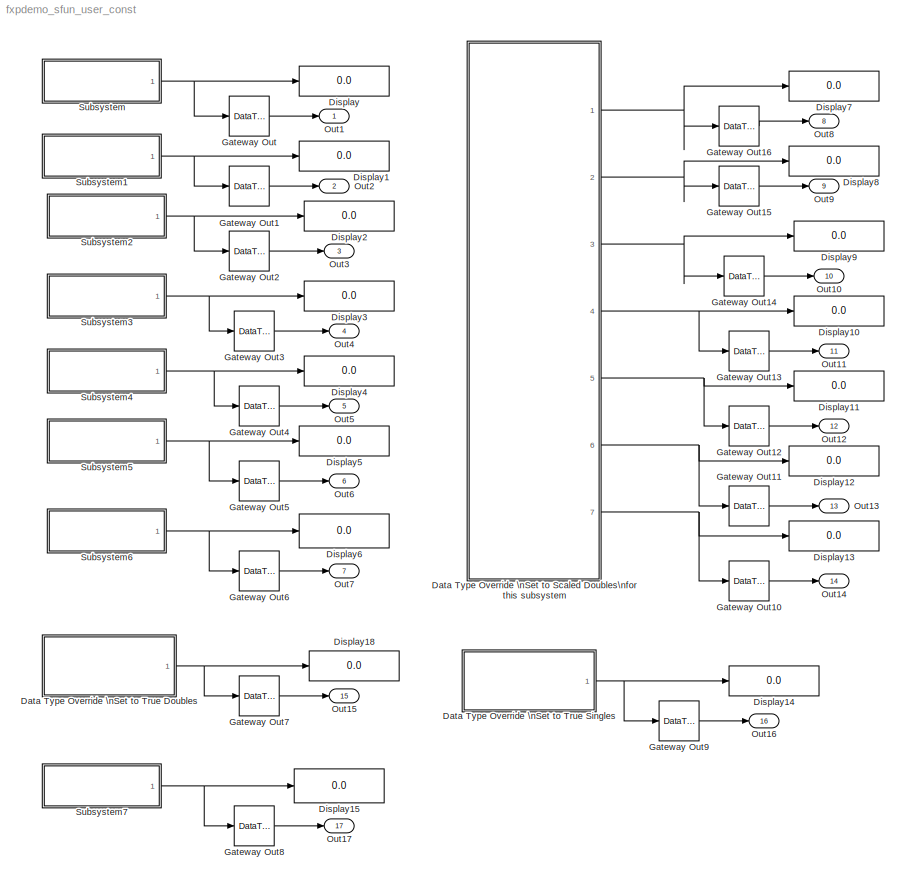
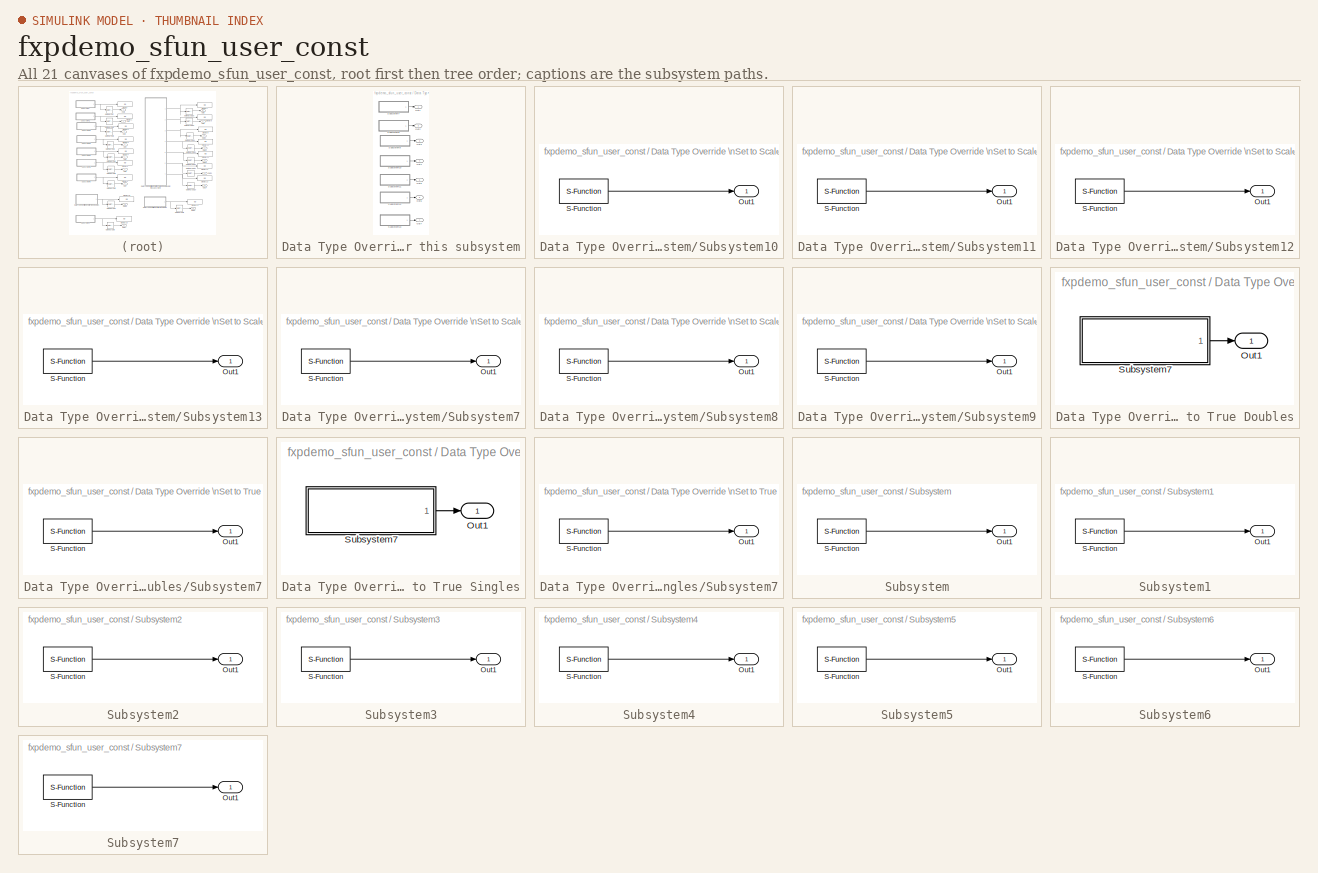
[diagram: thumbnail index - all 21 canvases of the model, root first then tree order]
MODEL fxpdemo_sfun_user_const
KIND model
CONFIG AbsTol = auto
CONFIG FixedStep = 1
CONFIG MaxStep = auto
CONFIG MinStep = auto
CONFIG RelTol = 1e-3
CONFIG Solver = FixedStepDiscrete
CONFIG SolverMode = Auto
CONFIG StartTime = 0.0
CONFIG StopTime = 1
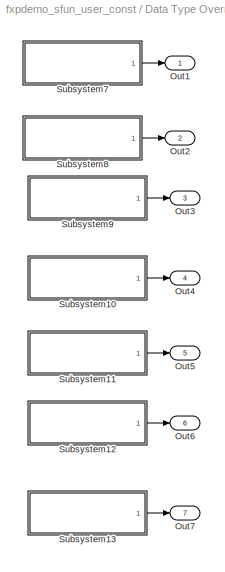
BLOCK [SubSystem] Data Type Override \nSet to Scaled Doubles\nfor this subsystem
  DataTypeOverride = ScaledDoubles
  Ports = [0, 7]
  TreatAsAtomicUnit = off
BLOCK [Outport] Data Type Override \nSet to Scaled Doubles\nfor this subsystem/Out1
BLOCK [Outport] Data Type Override \nSet to Scaled Doubles\nfor this subsystem/Out2
  Port = 2
BLOCK [Outport] Data Type Override \nSet to Scaled Doubles\nfor this subsystem/Out3
  Port = 3
BLOCK [Outport] Data Type Override \nSet to Scaled Doubles\nfor this subsystem/Out4
  Port = 4
BLOCK [Outport] Data Type Override \nSet to Scaled Doubles\nfor this subsystem/Out5
  Port = 5
BLOCK [Outport] Data Type Override \nSet to Scaled Doubles\nfor this subsystem/Out6
  Port = 6
BLOCK [Outport] Data Type Override \nSet to Scaled Doubles\nfor this subsystem/Out7
  Port = 7
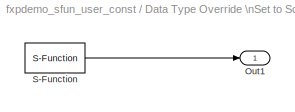
BLOCK [SubSystem] Data Type Override \nSet to Scaled Doubles\nfor this subsystem/Subsystem10
  MaskCallbackString = |||
  MaskDisplay = disp(sprintf('User SFunction\\nFixed Point\\nConstant'))
  MaskEnableString = on,on,on,on
  MaskIconFrame = on
  MaskIconOpaque = on
  MaskIconRotate = none
  MaskIconUnits = autoscale
  MaskPromptString = Stored Integer Value|Signed integer (otherwise unsigned integer)|Total Number of Bits|Number of Bits to Right of Binary Point
  MaskStyleString = edit,checkbox,edit,edit
  MaskToolTipString = on,on,on,on
  MaskTunableValueString = on,on,on,on
  MaskValueString = 33|off|7|2
  MaskVarAliasString = ,,,
  MaskVariables = storedInt=@1;isSigned=@2;numBits=@3;numFracBits=@4;
  MaskVisibilityString = on,on,on,on
  Ports = [0, 1]
  TreatAsAtomicUnit = off
BLOCK [Outport] Data Type Override \nSet to Scaled Doubles\nfor this subsystem/Subsystem10/Out1
BLOCK [S-Function] Data Type Override \nSet to Scaled Doubles\nfor this subsystem/Subsystem10/S-Function
  FunctionName = sfun_user_fxp_const
  Parameters = storedInt, isSigned, numBits, numFracBits
  Ports = [0, 1]
BLOCK [SubSystem] Data Type Override \nSet to Scaled Doubles\nfor this subsystem/Subsystem11
  MaskCallbackString = |||
  MaskDisplay = disp(sprintf('User SFunction\\nFixed Point\\nConstant'))
  MaskEnableString = on,on,on,on
  MaskIconFrame = on
  MaskIconOpaque = on
  MaskIconRotate = none
  MaskIconUnits = autoscale
  MaskPromptString = Stored Integer Value|Signed integer (otherwise unsigned integer)|Total Number of Bits|Number of Bits to Right of Binary Point
  MaskStyleString = edit,checkbox,edit,edit
  MaskToolTipString = on,on,on,on
  MaskTunableValueString = on,on,on,on
  MaskValueString = 33|off|12|2
  MaskVarAliasString = ,,,
  MaskVariables = storedInt=@1;isSigned=@2;numBits=@3;numFracBits=@4;
  MaskVisibilityString = on,on,on,on
  Ports = [0, 1]
  TreatAsAtomicUnit = off
BLOCK [Outport] Data Type Override \nSet to Scaled Doubles\nfor this subsystem/Subsystem11/Out1
BLOCK [S-Function] Data Type Override \nSet to Scaled Doubles\nfor this subsystem/Subsystem11/S-Function
  FunctionName = sfun_user_fxp_const
  Parameters = storedInt, isSigned, numBits, numFracBits
  Ports = [0, 1]
BLOCK [SubSystem] Data Type Override \nSet to Scaled Doubles\nfor this subsystem/Subsystem12
  MaskCallbackString = |||
  MaskDisplay = disp(sprintf('User SFunction\\nFixed Point\\nConstant'))
  MaskEnableString = on,on,on,on
  MaskIconFrame = on
  MaskIconOpaque = on
  MaskIconRotate = none
  MaskIconUnits = autoscale
  MaskPromptString = Stored Integer Value|Signed integer (otherwise unsigned integer)|Total Number of Bits|Number of Bits to Right of Binary Point
  MaskStyleString = edit,checkbox,edit,edit
  MaskToolTipString = on,on,on,on
  MaskTunableValueString = on,on,on,on
  MaskValueString = 33|off|17|2
  MaskVarAliasString = ,,,
  MaskVariables = storedInt=@1;isSigned=@2;numBits=@3;numFracBits=@4;
  MaskVisibilityString = on,on,on,on
  Ports = [0, 1]
  TreatAsAtomicUnit = off
BLOCK [Outport] Data Type Override \nSet to Scaled Doubles\nfor this subsystem/Subsystem12/Out1
BLOCK [S-Function] Data Type Override \nSet to Scaled Doubles\nfor this subsystem/Subsystem12/S-Function
  FunctionName = sfun_user_fxp_const
  Parameters = storedInt, isSigned, numBits, numFracBits
  Ports = [0, 1]
BLOCK [SubSystem] Data Type Override \nSet to Scaled Doubles\nfor this subsystem/Subsystem13
  MaskCallbackString = |||
  MaskDisplay = disp(sprintf('User SFunction\\nFixed Point\\nConstant'))
  MaskEnableString = on,on,on,on
  MaskIconFrame = on
  MaskIconOpaque = on
  MaskIconRotate = none
  MaskIconUnits = autoscale
  MaskPromptString = Stored Integer Value|Signed integer (otherwise unsigned integer)|Total Number of Bits|Number of Bits to Right of Binary Point
  MaskStyleString = edit,checkbox,edit,edit
  MaskToolTipString = on,on,on,on
  MaskTunableValueString = on,on,on,on
  MaskValueString = 33|off|77|2
  MaskVarAliasString = ,,,
  MaskVariables = storedInt=@1;isSigned=@2;numBits=@3;numFracBits=@4;
  MaskVisibilityString = on,on,on,on
  Ports = [0, 1]
  TreatAsAtomicUnit = off
BLOCK [Outport] Data Type Override \nSet to Scaled Doubles\nfor this subsystem/Subsystem13/Out1
BLOCK [S-Function] Data Type Override \nSet to Scaled Doubles\nfor this subsystem/Subsystem13/S-Function
  FunctionName = sfun_user_fxp_const
  Parameters = storedInt, isSigned, numBits, numFracBits
  Ports = [0, 1]
BLOCK [SubSystem] Data Type Override \nSet to Scaled Doubles\nfor this subsystem/Subsystem7
  MaskCallbackString = |||
  MaskDisplay = disp(sprintf('User SFunction\\nFixed Point\\nConstant'))
  MaskEnableString = on,on,on,on
  MaskIconFrame = on
  MaskIconOpaque = on
  MaskIconRotate = none
  MaskIconUnits = autoscale
  MaskPromptString = Stored Integer Value|Signed integer (otherwise unsigned integer)|Total Number of Bits|Number of Bits to Right of Binary Point
  MaskStyleString = edit,checkbox,edit,edit
  MaskToolTipString = on,on,on,on
  MaskTunableValueString = on,on,on,on
  MaskValueString = 33|on|7|2
  MaskVarAliasString = ,,,
  MaskVariables = storedInt=@1;isSigned=@2;numBits=@3;numFracBits=@4;
  MaskVisibilityString = on,on,on,on
  Ports = [0, 1]
  TreatAsAtomicUnit = off
BLOCK [Outport] Data Type Override \nSet to Scaled Doubles\nfor this subsystem/Subsystem7/Out1
BLOCK [S-Function] Data Type Override \nSet to Scaled Doubles\nfor this subsystem/Subsystem7/S-Function
  FunctionName = sfun_user_fxp_const
  Parameters = storedInt, isSigned, numBits, numFracBits
  Ports = [0, 1]
BLOCK [SubSystem] Data Type Override \nSet to Scaled Doubles\nfor this subsystem/Subsystem8
  MaskCallbackString = |||
  MaskDisplay = disp(sprintf('User SFunction\\nFixed Point\\nConstant'))
  MaskEnableString = on,on,on,on
  MaskIconFrame = on
  MaskIconOpaque = on
  MaskIconRotate = none
  MaskIconUnits = autoscale
  MaskPromptString = Stored Integer Value|Signed integer (otherwise unsigned integer)|Total Number of Bits|Number of Bits to Right of Binary Point
  MaskStyleString = edit,checkbox,edit,edit
  MaskToolTipString = on,on,on,on
  MaskTunableValueString = on,on,on,on
  MaskValueString = 33|on|12|2
  MaskVarAliasString = ,,,
  MaskVariables = storedInt=@1;isSigned=@2;numBits=@3;numFracBits=@4;
  MaskVisibilityString = on,on,on,on
  Ports = [0, 1]
  TreatAsAtomicUnit = off
BLOCK [Outport] Data Type Override \nSet to Scaled Doubles\nfor this subsystem/Subsystem8/Out1
BLOCK [S-Function] Data Type Override \nSet to Scaled Doubles\nfor this subsystem/Subsystem8/S-Function
  FunctionName = sfun_user_fxp_const
  Parameters = storedInt, isSigned, numBits, numFracBits
  Ports = [0, 1]
BLOCK [SubSystem] Data Type Override \nSet to Scaled Doubles\nfor this subsystem/Subsystem9
  MaskCallbackString = |||
  MaskDisplay = disp(sprintf('User SFunction\\nFixed Point\\nConstant'))
  MaskEnableString = on,on,on,on
  MaskIconFrame = on
  MaskIconOpaque = on
  MaskIconRotate = none
  MaskIconUnits = autoscale
  MaskPromptString = Stored Integer Value|Signed integer (otherwise unsigned integer)|Total Number of Bits|Number of Bits to Right of Binary Point
  MaskStyleString = edit,checkbox,edit,edit
  MaskToolTipString = on,on,on,on
  MaskTunableValueString = on,on,on,on
  MaskValueString = 33|on|17|2
  MaskVarAliasString = ,,,
  MaskVariables = storedInt=@1;isSigned=@2;numBits=@3;numFracBits=@4;
  MaskVisibilityString = on,on,on,on
  Ports = [0, 1]
  TreatAsAtomicUnit = off
BLOCK [Outport] Data Type Override \nSet to Scaled Doubles\nfor this subsystem/Subsystem9/Out1
BLOCK [S-Function] Data Type Override \nSet to Scaled Doubles\nfor this subsystem/Subsystem9/S-Function
  FunctionName = sfun_user_fxp_const
  Parameters = storedInt, isSigned, numBits, numFracBits
  Ports = [0, 1]
BLOCK [SubSystem] Data Type Override \nSet to True Doubles
  DataTypeOverride = TrueDoubles
  Ports = [0, 1]
  TreatAsAtomicUnit = off
BLOCK [Outport] Data Type Override \nSet to True Doubles/Out1
BLOCK [SubSystem] Data Type Override \nSet to True Doubles/Subsystem7
  MaskCallbackString = |||
  MaskDisplay = disp(sprintf('User SFunction\\nFixed Point\\nConstant'))
  MaskEnableString = on,on,on,on
  MaskIconFrame = on
  MaskIconOpaque = on
  MaskIconRotate = none
  MaskIconUnits = autoscale
  MaskPromptString = Stored Integer Value|Signed integer (otherwise unsigned integer)|Total Number of Bits|Number of Bits to Right of Binary Point
  MaskStyleString = edit,checkbox,edit,edit
  MaskToolTipString = on,on,on,on
  MaskTunableValueString = on,on,on,on
  MaskValueString = 33|on|7|2
  MaskVarAliasString = ,,,
  MaskVariables = storedInt=@1;isSigned=@2;numBits=@3;numFracBits=@4;
  MaskVisibilityString = on,on,on,on
  Ports = [0, 1]
  TreatAsAtomicUnit = off
BLOCK [Outport] Data Type Override \nSet to True Doubles/Subsystem7/Out1
BLOCK [S-Function] Data Type Override \nSet to True Doubles/Subsystem7/S-Function
  FunctionName = sfun_user_fxp_const
  Parameters = storedInt, isSigned, numBits, numFracBits
  Ports = [0, 1]
BLOCK [SubSystem] Data Type Override \nSet to True Singles
  DataTypeOverride = TrueSingles
  Ports = [0, 1]
  TreatAsAtomicUnit = off
BLOCK [Outport] Data Type Override \nSet to True Singles/Out1
BLOCK [SubSystem] Data Type Override \nSet to True Singles/Subsystem7
  MaskCallbackString = |||
  MaskDisplay = disp(sprintf('User SFunction\\nFixed Point\\nConstant'))
  MaskEnableString = on,on,on,on
  MaskIconFrame = on
  MaskIconOpaque = on
  MaskIconRotate = none
  MaskIconUnits = autoscale
  MaskPromptString = Stored Integer Value|Signed integer (otherwise unsigned integer)|Total Number of Bits|Number of Bits to Right of Binary Point
  MaskStyleString = edit,checkbox,edit,edit
  MaskToolTipString = on,on,on,on
  MaskTunableValueString = on,on,on,on
  MaskValueString = 33|on|7|2
  MaskVarAliasString = ,,,
  MaskVariables = storedInt=@1;isSigned=@2;numBits=@3;numFracBits=@4;
  MaskVisibilityString = on,on,on,on
  Ports = [0, 1]
  TreatAsAtomicUnit = off
BLOCK [Outport] Data Type Override \nSet to True Singles/Subsystem7/Out1
BLOCK [S-Function] Data Type Override \nSet to True Singles/Subsystem7/S-Function
  FunctionName = sfun_user_fxp_const
  Parameters = storedInt, isSigned, numBits, numFracBits
  Ports = [0, 1]
BLOCK [Display] Display
  Decimation = 1
  Ports = [1]
BLOCK [Display] Display1
  Decimation = 1
  Ports = [1]
BLOCK [Display] Display10
  Decimation = 1
  Ports = [1]
BLOCK [Display] Display11
  Decimation = 1
  Ports = [1]
BLOCK [Display] Display12
  Decimation = 1
  Ports = [1]
BLOCK [Display] Display13
  Decimation = 1
  Ports = [1]
BLOCK [Display] Display14
  Decimation = 1
  Ports = [1]
BLOCK [Display] Display15
  Decimation = 1
  Ports = [1]
BLOCK [Display] Display18
  Decimation = 1
  Ports = [1]
BLOCK [Display] Display2
  Decimation = 1
  Ports = [1]
BLOCK [Display] Display3
  Decimation = 1
  Ports = [1]
BLOCK [Display] Display4
  Decimation = 1
  Ports = [1]
BLOCK [Display] Display5
  Decimation = 1
  Ports = [1]
BLOCK [Display] Display6
  Decimation = 1
  Ports = [1]
BLOCK [Display] Display7
  Decimation = 1
  Ports = [1]
BLOCK [Display] Display8
  Decimation = 1
  Ports = [1]
BLOCK [Display] Display9
  Decimation = 1
  Ports = [1]
BLOCK [DataTypeConversion] Gateway Out
  DataType = double
  SaturateOnIntegerOverflow = off
BLOCK [DataTypeConversion] Gateway Out1
  DataType = double
  SaturateOnIntegerOverflow = off
BLOCK [DataTypeConversion] Gateway Out10
  DataType = double
  SaturateOnIntegerOverflow = off
BLOCK [DataTypeConversion] Gateway Out11
  DataType = double
  SaturateOnIntegerOverflow = off
BLOCK [DataTypeConversion] Gateway Out12
  DataType = double
  SaturateOnIntegerOverflow = off
BLOCK [DataTypeConversion] Gateway Out13
  DataType = double
  SaturateOnIntegerOverflow = off
BLOCK [DataTypeConversion] Gateway Out14
  DataType = double
  SaturateOnIntegerOverflow = off
BLOCK [DataTypeConversion] Gateway Out15
  DataType = double
  SaturateOnIntegerOverflow = off
BLOCK [DataTypeConversion] Gateway Out16
  DataType = double
  SaturateOnIntegerOverflow = off
BLOCK [DataTypeConversion] Gateway Out2
  DataType = double
  SaturateOnIntegerOverflow = off
BLOCK [DataTypeConversion] Gateway Out3
  DataType = double
  SaturateOnIntegerOverflow = off
BLOCK [DataTypeConversion] Gateway Out4
  DataType = double
  SaturateOnIntegerOverflow = off
BLOCK [DataTypeConversion] Gateway Out5
  DataType = double
  SaturateOnIntegerOverflow = off
BLOCK [DataTypeConversion] Gateway Out6
  DataType = double
  SaturateOnIntegerOverflow = off
BLOCK [DataTypeConversion] Gateway Out7
  DataType = double
  SaturateOnIntegerOverflow = off
BLOCK [DataTypeConversion] Gateway Out8
  DataType = double
  SaturateOnIntegerOverflow = off
BLOCK [DataTypeConversion] Gateway Out9
  DataType = double
  SaturateOnIntegerOverflow = off
BLOCK [Outport] Out1
BLOCK [Outport] Out10
  Port = 10
BLOCK [Outport] Out11
  Port = 11
BLOCK [Outport] Out12
  Port = 12
BLOCK [Outport] Out13
  Port = 13
BLOCK [Outport] Out14
  Port = 14
BLOCK [Outport] Out15
  Port = 15
BLOCK [Outport] Out16
  Port = 16
BLOCK [Outport] Out17
  Port = 17
BLOCK [Outport] Out2
  Port = 2
BLOCK [Outport] Out3
  Port = 3
BLOCK [Outport] Out4
  Port = 4
BLOCK [Outport] Out5
  Port = 5
BLOCK [Outport] Out6
  Port = 6
BLOCK [Outport] Out7
  Port = 7
BLOCK [Outport] Out8
  Port = 8
BLOCK [Outport] Out9
  Port = 9
BLOCK [SubSystem] Subsystem
  MaskCallbackString = |||
  MaskDisplay = disp(sprintf('User SFunction\\nFixed Point\\nConstant'))
  MaskEnableString = on,on,on,on
  MaskIconFrame = on
  MaskIconOpaque = on
  MaskIconRotate = none
  MaskIconUnits = autoscale
  MaskPromptString = Stored Integer Value|Signed integer (otherwise unsigned integer)|Total Number of Bits|Number of Bits to Right of Binary Point
  MaskStyleString = edit,checkbox,edit,edit
  MaskToolTipString = on,on,on,on
  MaskTunableValueString = on,on,on,on
  MaskValueString = 33|on|7|2
  MaskVarAliasString = ,,,
  MaskVariables = storedInt=@1;isSigned=@2;numBits=@3;numFracBits=@4;
  MaskVisibilityString = on,on,on,on
  Ports = [0, 1]
  TreatAsAtomicUnit = off
BLOCK [Outport] Subsystem/Out1
BLOCK [S-Function] Subsystem/S-Function
  FunctionName = sfun_user_fxp_const
  Parameters = storedInt, isSigned, numBits, numFracBits
  Ports = [0, 1]
BLOCK [SubSystem] Subsystem1
  MaskCallbackString = |||
  MaskDisplay = disp(sprintf('User SFunction\\nFixed Point\\nConstant'))
  MaskEnableString = on,on,on,on
  MaskIconFrame = on
  MaskIconOpaque = on
  MaskIconRotate = none
  MaskIconUnits = autoscale
  MaskPromptString = Stored Integer Value|Signed integer (otherwise unsigned integer)|Total Number of Bits|Number of Bits to Right of Binary Point
  MaskStyleString = edit,checkbox,edit,edit
  MaskToolTipString = on,on,on,on
  MaskTunableValueString = on,on,on,on
  MaskValueString = 33|on|12|2
  MaskVarAliasString = ,,,
  MaskVariables = storedInt=@1;isSigned=@2;numBits=@3;numFracBits=@4;
  MaskVisibilityString = on,on,on,on
  Ports = [0, 1]
  TreatAsAtomicUnit = off
BLOCK [Outport] Subsystem1/Out1
BLOCK [S-Function] Subsystem1/S-Function
  FunctionName = sfun_user_fxp_const
  Parameters = storedInt, isSigned, numBits, numFracBits
  Ports = [0, 1]
BLOCK [SubSystem] Subsystem2
  MaskCallbackString = |||
  MaskDisplay = disp(sprintf('User SFunction\\nFixed Point\\nConstant'))
  MaskEnableString = on,on,on,on
  MaskIconFrame = on
  MaskIconOpaque = on
  MaskIconRotate = none
  MaskIconUnits = autoscale
  MaskPromptString = Stored Integer Value|Signed integer (otherwise unsigned integer)|Total Number of Bits|Number of Bits to Right of Binary Point
  MaskStyleString = edit,checkbox,edit,edit
  MaskToolTipString = on,on,on,on
  MaskTunableValueString = on,on,on,on
  MaskValueString = 33|on|17|2
  MaskVarAliasString = ,,,
  MaskVariables = storedInt=@1;isSigned=@2;numBits=@3;numFracBits=@4;
  MaskVisibilityString = on,on,on,on
  Ports = [0, 1]
  TreatAsAtomicUnit = off
BLOCK [Outport] Subsystem2/Out1
BLOCK [S-Function] Subsystem2/S-Function
  FunctionName = sfun_user_fxp_const
  Parameters = storedInt, isSigned, numBits, numFracBits
  Ports = [0, 1]
BLOCK [SubSystem] Subsystem3
  MaskCallbackString = |||
  MaskDisplay = disp(sprintf('User SFunction\\nFixed Point\\nConstant'))
  MaskEnableString = on,on,on,on
  MaskIconFrame = on
  MaskIconOpaque = on
  MaskIconRotate = none
  MaskIconUnits = autoscale
  MaskPromptString = Stored Integer Value|Signed integer (otherwise unsigned integer)|Total Number of Bits|Number of Bits to Right of Binary Point
  MaskStyleString = edit,checkbox,edit,edit
  MaskToolTipString = on,on,on,on
  MaskTunableValueString = on,on,on,on
  MaskValueString = 33|off|7|2
  MaskVarAliasString = ,,,
  MaskVariables = storedInt=@1;isSigned=@2;numBits=@3;numFracBits=@4;
  MaskVisibilityString = on,on,on,on
  Ports = [0, 1]
  TreatAsAtomicUnit = off
BLOCK [Outport] Subsystem3/Out1
BLOCK [S-Function] Subsystem3/S-Function
  FunctionName = sfun_user_fxp_const
  Parameters = storedInt, isSigned, numBits, numFracBits
  Ports = [0, 1]
BLOCK [SubSystem] Subsystem4
  MaskCallbackString = |||
  MaskDisplay = disp(sprintf('User SFunction\\nFixed Point\\nConstant'))
  MaskEnableString = on,on,on,on
  MaskIconFrame = on
  MaskIconOpaque = on
  MaskIconRotate = none
  MaskIconUnits = autoscale
  MaskPromptString = Stored Integer Value|Signed integer (otherwise unsigned integer)|Total Number of Bits|Number of Bits to Right of Binary Point
  MaskStyleString = edit,checkbox,edit,edit
  MaskToolTipString = on,on,on,on
  MaskTunableValueString = on,on,on,on
  MaskValueString = 33|off|12|2
  MaskVarAliasString = ,,,
  MaskVariables = storedInt=@1;isSigned=@2;numBits=@3;numFracBits=@4;
  MaskVisibilityString = on,on,on,on
  Ports = [0, 1]
  TreatAsAtomicUnit = off
BLOCK [Outport] Subsystem4/Out1
BLOCK [S-Function] Subsystem4/S-Function
  FunctionName = sfun_user_fxp_const
  Parameters = storedInt, isSigned, numBits, numFracBits
  Ports = [0, 1]
BLOCK [SubSystem] Subsystem5
  MaskCallbackString = |||
  MaskDisplay = disp(sprintf('User SFunction\\nFixed Point\\nConstant'))
  MaskEnableString = on,on,on,on
  MaskIconFrame = on
  MaskIconOpaque = on
  MaskIconRotate = none
  MaskIconUnits = autoscale
  MaskPromptString = Stored Integer Value|Signed integer (otherwise unsigned integer)|Total Number of Bits|Number of Bits to Right of Binary Point
  MaskStyleString = edit,checkbox,edit,edit
  MaskToolTipString = on,on,on,on
  MaskTunableValueString = on,on,on,on
  MaskValueString = 33|off|17|2
  MaskVarAliasString = ,,,
  MaskVariables = storedInt=@1;isSigned=@2;numBits=@3;numFracBits=@4;
  MaskVisibilityString = on,on,on,on
  Ports = [0, 1]
  TreatAsAtomicUnit = off
BLOCK [Outport] Subsystem5/Out1
BLOCK [S-Function] Subsystem5/S-Function
  FunctionName = sfun_user_fxp_const
  Parameters = storedInt, isSigned, numBits, numFracBits
  Ports = [0, 1]
BLOCK [SubSystem] Subsystem6
  MaskCallbackString = |||
  MaskDisplay = disp(sprintf('User SFunction\\nFixed Point\\nConstant'))
  MaskEnableString = on,on,on,on
  MaskIconFrame = on
  MaskIconOpaque = on
  MaskIconRotate = none
  MaskIconUnits = autoscale
  MaskPromptString = Stored Integer Value|Signed integer (otherwise unsigned integer)|Total Number of Bits|Number of Bits to Right of Binary Point
  MaskStyleString = edit,checkbox,edit,edit
  MaskToolTipString = on,on,on,on
  MaskTunableValueString = on,on,on,on
  MaskValueString = 33|off|77|2
  MaskVarAliasString = ,,,
  MaskVariables = storedInt=@1;isSigned=@2;numBits=@3;numFracBits=@4;
  MaskVisibilityString = on,on,on,on
  Ports = [0, 1]
  TreatAsAtomicUnit = off
BLOCK [Outport] Subsystem6/Out1
BLOCK [S-Function] Subsystem6/S-Function
  FunctionName = sfun_user_fxp_const
  Parameters = storedInt, isSigned, numBits, numFracBits
  Ports = [0, 1]
BLOCK [SubSystem] Subsystem7
  MaskCallbackString = |||
  MaskDisplay = disp(sprintf('User SFunction\\nFixed Point\\nConstant'))
  MaskEnableString = on,on,on,on
  MaskIconFrame = on
  MaskIconOpaque = on
  MaskIconRotate = none
  MaskIconUnits = autoscale
  MaskPromptString = Stored Integer Value|Signed integer (otherwise unsigned integer)|Total Number of Bits|Number of Bits to Right of Binary Point
  MaskStyleString = edit,checkbox,edit,edit
  MaskToolTipString = on,on,on,on
  MaskTunableValueString = on,on,on,on
  MaskValueString = -33|on|77|2
  MaskVarAliasString = ,,,
  MaskVariables = storedInt=@1;isSigned=@2;numBits=@3;numFracBits=@4;
  MaskVisibilityString = on,on,on,on
  Ports = [0, 1]
  TreatAsAtomicUnit = off
BLOCK [Outport] Subsystem7/Out1
BLOCK [S-Function] Subsystem7/S-Function
  FunctionName = sfun_user_fxp_const
  Parameters = storedInt, isSigned, numBits, numFracBits
  Ports = [0, 1]
LINE Data Type Override \nSet to Scaled Doubles\nfor this subsystem/Subsystem10/S-Function:1 -> Data Type Override \nSet to Scaled Doubles\nfor this subsystem/Subsystem10/Out1:1
LINE Data Type Override \nSet to Scaled Doubles\nfor this subsystem/Subsystem10:1 -> Data Type Override \nSet to Scaled Doubles\nfor this subsystem/Out4:1
LINE Data Type Override \nSet to Scaled Doubles\nfor this subsystem/Subsystem11/S-Function:1 -> Data Type Override \nSet to Scaled Doubles\nfor this subsystem/Subsystem11/Out1:1
LINE Data Type Override \nSet to Scaled Doubles\nfor this subsystem/Subsystem11:1 -> Data Type Override \nSet to Scaled Doubles\nfor this subsystem/Out5:1
LINE Data Type Override \nSet to Scaled Doubles\nfor this subsystem/Subsystem12/S-Function:1 -> Data Type Override \nSet to Scaled Doubles\nfor this subsystem/Subsystem12/Out1:1
LINE Data Type Override \nSet to Scaled Doubles\nfor this subsystem/Subsystem12:1 -> Data Type Override \nSet to Scaled Doubles\nfor this subsystem/Out6:1
LINE Data Type Override \nSet to Scaled Doubles\nfor this subsystem/Subsystem13/S-Function:1 -> Data Type Override \nSet to Scaled Doubles\nfor this subsystem/Subsystem13/Out1:1
LINE Data Type Override \nSet to Scaled Doubles\nfor this subsystem/Subsystem13:1 -> Data Type Override \nSet to Scaled Doubles\nfor this subsystem/Out7:1
LINE Data Type Override \nSet to Scaled Doubles\nfor this subsystem/Subsystem7/S-Function:1 -> Data Type Override \nSet to Scaled Doubles\nfor this subsystem/Subsystem7/Out1:1
LINE Data Type Override \nSet to Scaled Doubles\nfor this subsystem/Subsystem7:1 -> Data Type Override \nSet to Scaled Doubles\nfor this subsystem/Out1:1
LINE Data Type Override \nSet to Scaled Doubles\nfor this subsystem/Subsystem8/S-Function:1 -> Data Type Override \nSet to Scaled Doubles\nfor this subsystem/Subsystem8/Out1:1
LINE Data Type Override \nSet to Scaled Doubles\nfor this subsystem/Subsystem8:1 -> Data Type Override \nSet to Scaled Doubles\nfor this subsystem/Out2:1
LINE Data Type Override \nSet to Scaled Doubles\nfor this subsystem/Subsystem9/S-Function:1 -> Data Type Override \nSet to Scaled Doubles\nfor this subsystem/Subsystem9/Out1:1
LINE Data Type Override \nSet to Scaled Doubles\nfor this subsystem/Subsystem9:1 -> Data Type Override \nSet to Scaled Doubles\nfor this subsystem/Out3:1
NET Data Type Override \nSet to Scaled Doubles\nfor this subsystem:1 -> Display7:1, Gateway Out16:1
NET Data Type Override \nSet to Scaled Doubles\nfor this subsystem:2 -> Display8:1, Gateway Out15:1
NET Data Type Override \nSet to Scaled Doubles\nfor this subsystem:3 -> Display9:1, Gateway Out14:1
NET Data Type Override \nSet to Scaled Doubles\nfor this subsystem:4 -> Display10:1, Gateway Out13:1
NET Data Type Override \nSet to Scaled Doubles\nfor this subsystem:5 -> Display11:1, Gateway Out12:1
NET Data Type Override \nSet to Scaled Doubles\nfor this subsystem:6 -> Display12:1, Gateway Out11:1
NET Data Type Override \nSet to Scaled Doubles\nfor this subsystem:7 -> Display13:1, Gateway Out10:1
LINE Data Type Override \nSet to True Doubles/Subsystem7/S-Function:1 -> Data Type Override \nSet to True Doubles/Subsystem7/Out1:1
LINE Data Type Override \nSet to True Doubles/Subsystem7:1 -> Data Type Override \nSet to True Doubles/Out1:1
NET Data Type Override \nSet to True Doubles:1 -> Display18:1, Gateway Out7:1
LINE Data Type Override \nSet to True Singles/Subsystem7/S-Function:1 -> Data Type Override \nSet to True Singles/Subsystem7/Out1:1
LINE Data Type Override \nSet to True Singles/Subsystem7:1 -> Data Type Override \nSet to True Singles/Out1:1
NET Data Type Override \nSet to True Singles:1 -> Display14:1, Gateway Out9:1
LINE Gateway Out10:1 -> Out14:1
LINE Gateway Out11:1 -> Out13:1
LINE Gateway Out12:1 -> Out12:1
LINE Gateway Out13:1 -> Out11:1
LINE Gateway Out14:1 -> Out10:1
LINE Gateway Out15:1 -> Out9:1
LINE Gateway Out16:1 -> Out8:1
LINE Gateway Out1:1 -> Out2:1
LINE Gateway Out2:1 -> Out3:1
LINE Gateway Out3:1 -> Out4:1
LINE Gateway Out4:1 -> Out5:1
LINE Gateway Out5:1 -> Out6:1
LINE Gateway Out6:1 -> Out7:1
LINE Gateway Out7:1 -> Out15:1
LINE Gateway Out8:1 -> Out17:1
LINE Gateway Out9:1 -> Out16:1
LINE Gateway Out:1 -> Out1:1
LINE Subsystem/S-Function:1 -> Subsystem/Out1:1
LINE Subsystem1/S-Function:1 -> Subsystem1/Out1:1
NET Subsystem1:1 -> Display1:1, Gateway Out1:1
LINE Subsystem2/S-Function:1 -> Subsystem2/Out1:1
NET Subsystem2:1 -> Display2:1, Gateway Out2:1
LINE Subsystem3/S-Function:1 -> Subsystem3/Out1:1
NET Subsystem3:1 -> Display3:1, Gateway Out3:1
LINE Subsystem4/S-Function:1 -> Subsystem4/Out1:1
NET Subsystem4:1 -> Display4:1, Gateway Out4:1
LINE Subsystem5/S-Function:1 -> Subsystem5/Out1:1
NET Subsystem5:1 -> Display5:1, Gateway Out5:1
LINE Subsystem6/S-Function:1 -> Subsystem6/Out1:1
NET Subsystem6:1 -> Display6:1, Gateway Out6:1
LINE Subsystem7/S-Function:1 -> Subsystem7/Out1:1
NET Subsystem7:1 -> Display15:1, Gateway Out8:1
NET Subsystem:1 -> Display:1, Gateway Out:1
note: NET lines group one-source signal fan-out (src -> all destinations, sorted); 1:1 wires keep LINE
